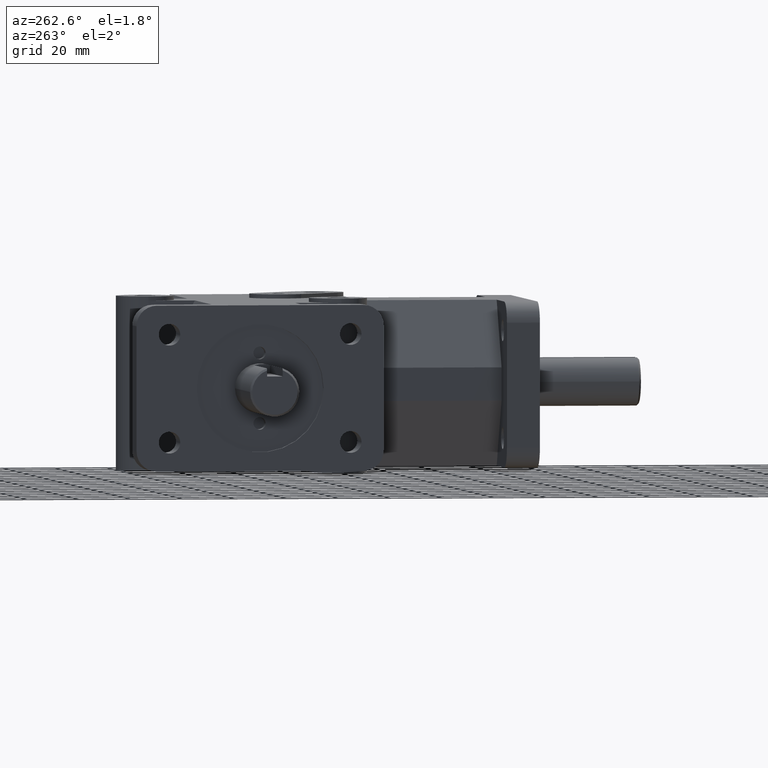
[diagram: clean part render]
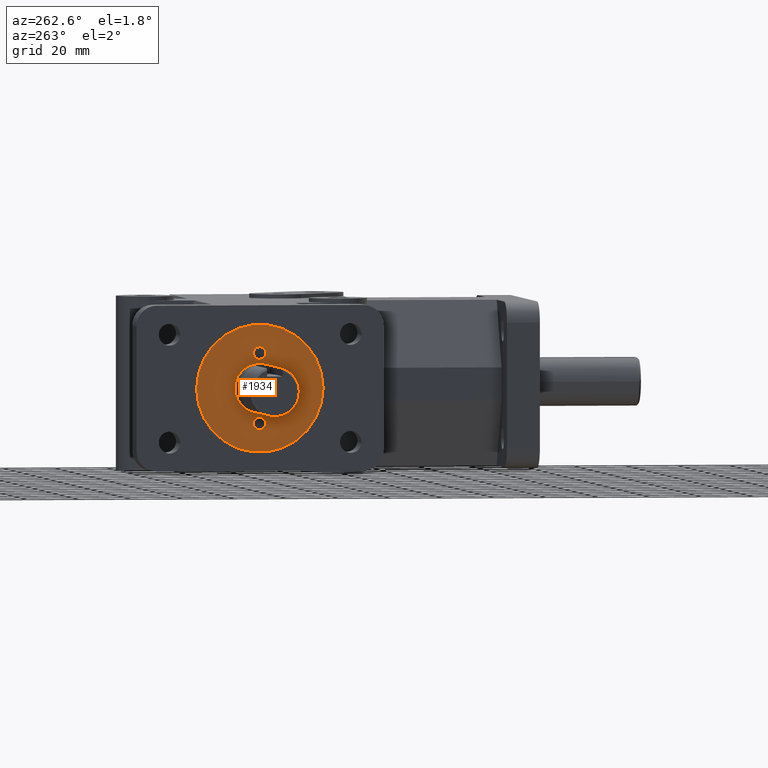
[diagram: same view with one face highlighted and labeled with its STEP entity id]
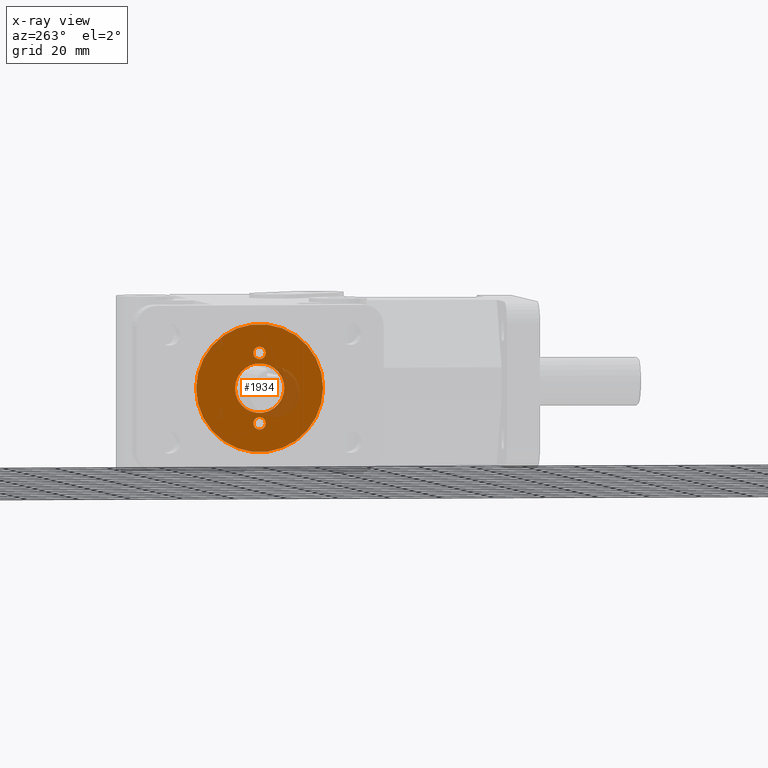
[diagram: x-ray of the same camera — body ghosted, the highlighted face saturated]
A machine part, auxiliary view. The second image highlights one B-rep face of the part: STEP entity #1934.
The next image is the same camera in x-ray: the body ghosted, the highlighted face saturated — about 7% of this face is hidden behind the body in this view.
In plain terms, the highlighted planar face has unit normal (1, 0, 0).
Its self-contained STEP definition (entity closure, byte-faithful):
#15=FACE_BOUND('',#263,.T.);
#16=FACE_BOUND('',#264,.T.);
#17=FACE_BOUND('',#265,.T.);
#67=PLANE('',#2086);
#152=FACE_OUTER_BOUND('',#262,.T.);
#262=EDGE_LOOP('',(#1422));
#263=EDGE_LOOP('',(#1423));
#264=EDGE_LOOP('',(#1424));
#265=EDGE_LOOP('',(#1425));
#771=CIRCLE('',#2043,24.4602);
#779=CIRCLE('',#2063,9.5);
#782=CIRCLE('',#2069,2.38125);
#784=CIRCLE('',#2072,2.38125);
#856=VERTEX_POINT('',#2829);
#880=VERTEX_POINT('',#2907);
#881=VERTEX_POINT('',#2915);
#883=VERTEX_POINT('',#2921);
#1044=EDGE_CURVE('',#856,#856,#771,.T.);
#1078=EDGE_CURVE('',#880,#880,#779,.T.);
#1081=EDGE_CURVE('',#881,#881,#782,.T.);
#1084=EDGE_CURVE('',#883,#883,#784,.T.);
#1422=ORIENTED_EDGE('',*,*,#1044,.T.);
#1423=ORIENTED_EDGE('',*,*,#1078,.T.);
#1424=ORIENTED_EDGE('',*,*,#1081,.T.);
#1425=ORIENTED_EDGE('',*,*,#1084,.T.);
#1934=ADVANCED_FACE('',(#152,#15,#16,#17),#67,.F.);
#2043=AXIS2_PLACEMENT_3D('',#2831,#2251,#2252);
#2063=AXIS2_PLACEMENT_3D('',#2909,#2313,#2314);
#2069=AXIS2_PLACEMENT_3D('',#2916,#2325,#2326);
#2072=AXIS2_PLACEMENT_3D('',#2922,#2332,#2333);
#2086=AXIS2_PLACEMENT_3D('',#2950,#2365,#2366);
#2251=DIRECTION('center_axis',(-1.,0.,0.));
#2252=DIRECTION('ref_axis',(0.,1.,0.));
#2313=DIRECTION('center_axis',(1.,0.,0.));
#2314=DIRECTION('ref_axis',(0.,-1.,0.));
#2325=DIRECTION('center_axis',(1.,0.,0.));
#2326=DIRECTION('ref_axis',(0.,1.,0.));
#2332=DIRECTION('center_axis',(1.,0.,0.));
#2333=DIRECTION('ref_axis',(0.,1.,0.));
#2365=DIRECTION('center_axis',(1.,0.,0.));
#2366=DIRECTION('ref_axis',(0.,-1.,0.));
#2829=CARTESIAN_POINT('',(-71.501,86.6648,-2.99551056365041E-15));
#2831=CARTESIAN_POINT('Origin',(-71.501,111.125,0.));
#2907=CARTESIAN_POINT('',(-71.501,120.625,-1.16341445918999E-15));
#2909=CARTESIAN_POINT('Origin',(-71.501,111.125,0.));
#2915=CARTESIAN_POINT('',(-71.501,108.74375,-13.462));
#2916=CARTESIAN_POINT('Origin',(-71.501,111.125,-13.462));
#2921=CARTESIAN_POINT('',(-71.501,108.74375,13.462));
#2922=CARTESIAN_POINT('Origin',(-71.501,111.125,13.462));
#2950=CARTESIAN_POINT('Origin',(-71.501,112.856818181818,-4.24159109823932E-16));